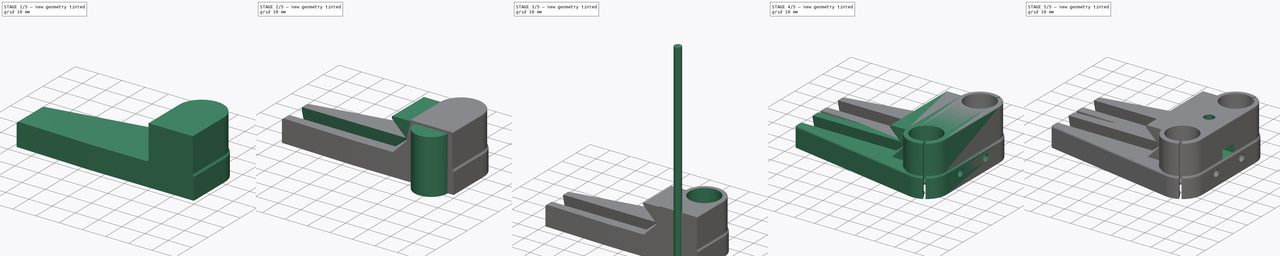
[diagram: build sequence overview — one tinted view per stage of 5, left to right]
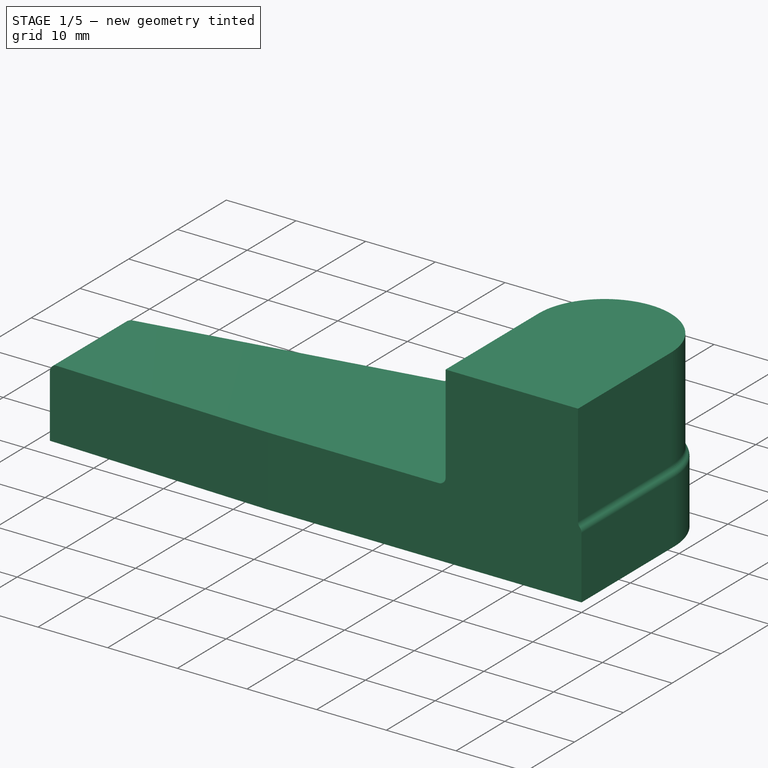
[diagram: stage 1 of 5 — iso view after this stage's code; geometry added in this stage tinted green]
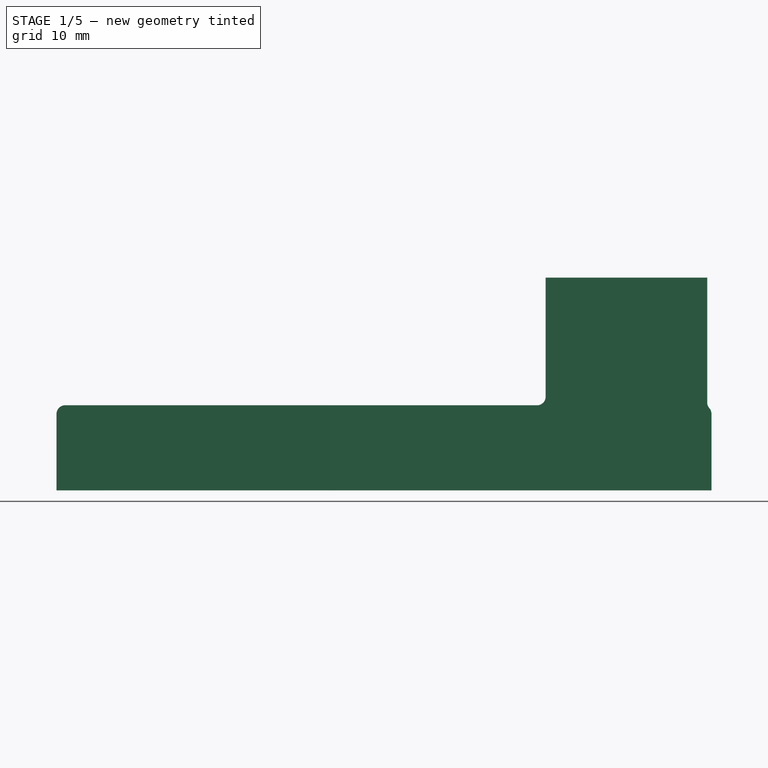
[diagram: stage 1 of 5 — front view after this stage's code; geometry added in this stage tinted green]
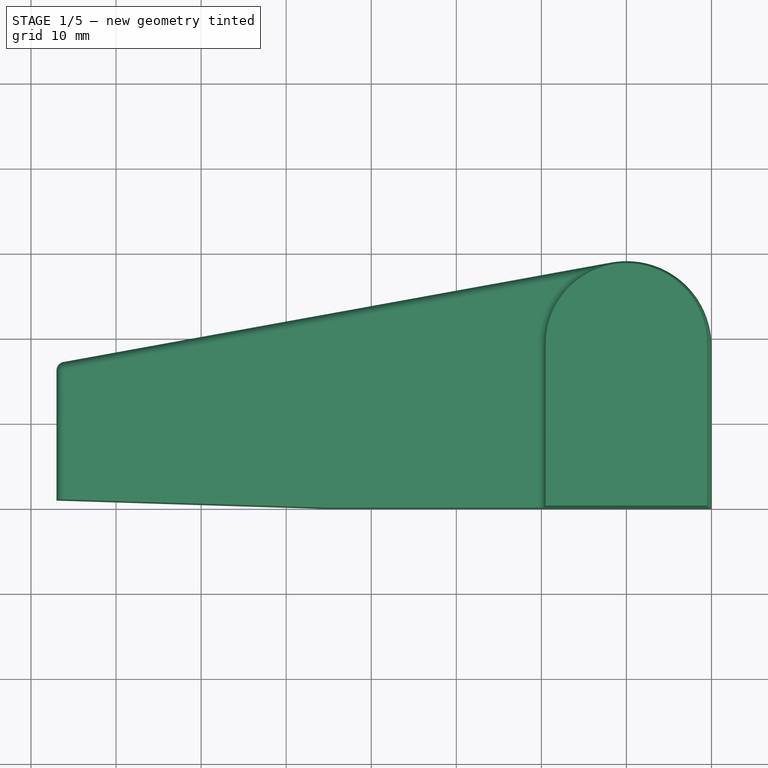
[diagram: stage 1 of 5 — top view after this stage's code; geometry added in this stage tinted green]
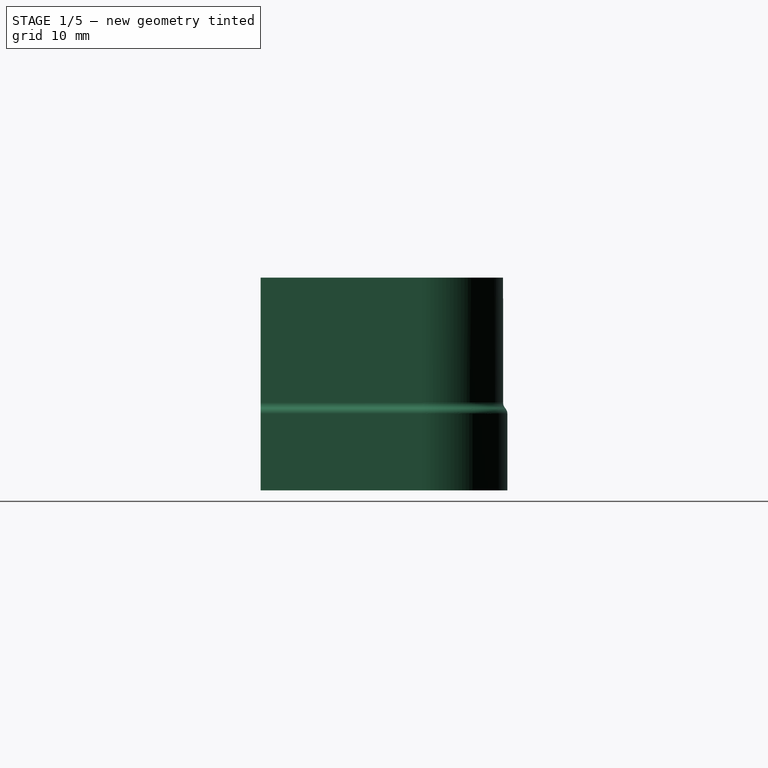
[diagram: stage 1 of 5 — right view after this stage's code; geometry added in this stage tinted green]
FCSTD DOCUMENT  (FreeCAD 0.16RUnknown)
Label: PhoneCarriage
License: All rights reserved
LicenseURL: http://en.wikipedia.org/wiki/All_rights_reserved
objects: Part::Fillet×7, Part::Feature×6, Sketcher::SketchObject×6, Part::FeaturePython×5, Part::Cut×5, Part::Cylinder×4, PartDesign::Pad×3, App::DocumentObjectGroup×3, Part::MultiFuse×2, PartDesign::Pocket×2, Spreadsheet::Sheet×1, Part::Extrusion×1, Part::Mirroring×1
note: 47 computed .brp shape members not serialized (recipe doc carries the construction recipe); baked Part::Feature solids carry a one-line shape summary decoded from their .brp

FEATURE [Sketcher::SketchObject] Sketch004  label="BearingHolder"
  sketch-geometry (4):
    g0: ArcOfCircle CenterX=0 CenterY=19 CenterZ=0 NormalX=0 NormalY=0 NormalZ=1 Radius=9.5 StartAngle=4.98169e-05 EndAngle=3.14159
    g1: LineSegment StartX=-9.5 StartY=19 StartZ=0 EndX=-9.5 EndY=0 EndZ=0
    g2: LineSegment StartX=-9.5 StartY=0 StartZ=0 EndX=9.5 EndY=0 EndZ=0
    g3: LineSegment StartX=9.5 StartY=0 StartZ=0 EndX=9.5 EndY=19.0005 EndZ=0
  constraints (12):
    c: Coincident(g1,g2)
    c: Coincident(g2,g3)
    c: Vertical(g3)
    c: Vertical(g1)
    c: Horizontal(g2)
    c: Coincident(g0,g1)
    c: Coincident(g0,g3)
    c: PointOnObject(g0,g-2)
    c: DistanceY(g0) = 19
    c: PointOnObject(g1,g-1)
    c: Tangent(g0,g1)
    c: Radius(g0) = 9.5
FEATURE [PartDesign::Pad] Pad  label="BearingHolder001"
  Length = 25
  Length2 = 100
  Sketch = -> Sketch004
  Type = 0
FEATURE [Sketcher::SketchObject] Sketch005  label="Base"
  Placement = pos=(0,0,0) rot=(1,0,0;3.14159rad)
  Support = -> Pad [Face5]
  sketch-geometry (7):
    g0: ArcOfCircle CenterX=0 CenterY=-19 CenterZ=0 NormalX=0 NormalY=0 NormalZ=1 Radius=10 StartAngle=4.5328 EndAngle=6.28319
    g1: LineSegment StartX=-1.78629 StartY=-28.8392 StartZ=0 EndX=-67 EndY=-17 EndZ=0
    g2: LineSegment StartX=-67 StartY=-17 StartZ=0 EndX=-67 EndY=-1 EndZ=0
    g3: LineSegment StartX=-35 StartY=0 StartZ=0 EndX=10 EndY=0 EndZ=0
    g4: LineSegment StartX=10 StartY=0 StartZ=0 EndX=10 EndY=-19 EndZ=0
    g5: LineSegment StartX=-35 StartY=0 StartZ=0 EndX=-67 EndY=-1 EndZ=0
    g6: GeomPoint [constr] X=-67 Y=-9 Z=0
  constraints (20):
    c: Coincident(g1,g2)
    c: Coincident(g3,g4)
    c: Coincident(g1,g0)
    c: Coincident(g0,g4)
    c: Tangent(g1,g0)
    c: Tangent(g0,g4)
    c: Vertical(g2)
    c: Vertical(g4)
    c: Horizontal(g3)
    c: PointOnObject(g0,g-2)
    c: Radius(g0) = 10
    c: DistanceY(g0) = -19
    c: DistanceX(g1) = -67
    c: Coincident(g5,g3)
    c: Coincident(g5,g2)
    c: PointOnObject(g3,g-1)
    c: DistanceY(g2,g2) = 16
    c: DistanceX(g3,g3) = 45
    c: Symmetric(g2,g1,g6)
    c: DistanceY(g6) = -9
FEATURE [Part::Extrusion] Extrude  label="Base001"
  Base = -> Sketch005
  Dir = (0,0,10)
  Solid = true
FEATURE [Part::Fillet] Fillet
  Base = -> Extrude
  Edges = 1 edges r=1: [Edge5]
FEATURE [Part::Fillet] Fillet001003  label="NiceFillet"
  Base = -> Fillet
  Edges = 1 edges r=1: [Edge4]
FEATURE [Part::MultiFuse] Fusion
  Shapes = -> [Pad,Fillet001003]
FEATURE [Part::Fillet] Fillet001004  label="NiceFillet001"
  Base = -> Fusion
  Edges = 1 edges r=1: [Edge5]
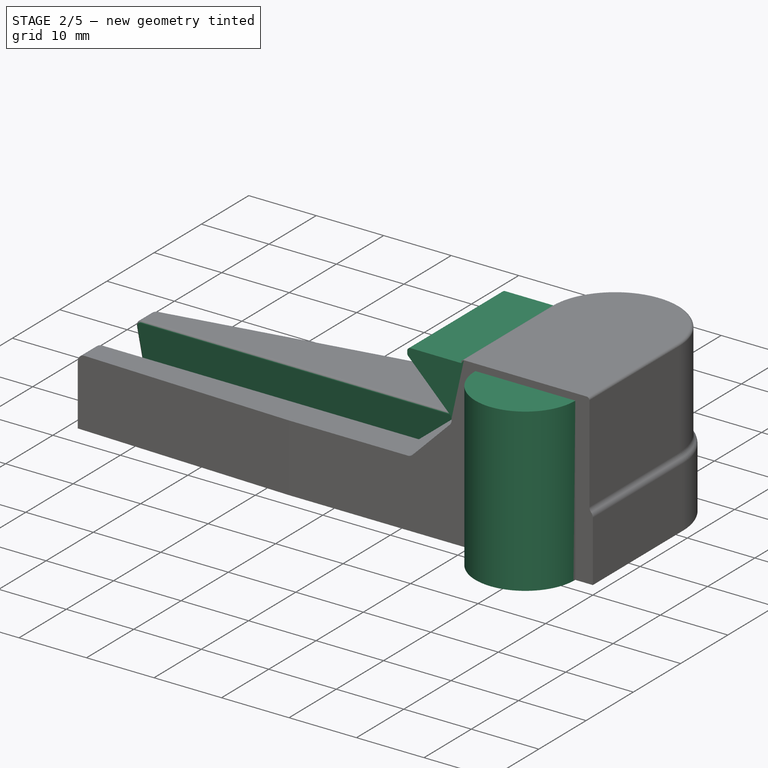
[diagram: stage 2 of 5 — iso view after this stage's code; geometry added in this stage tinted green]
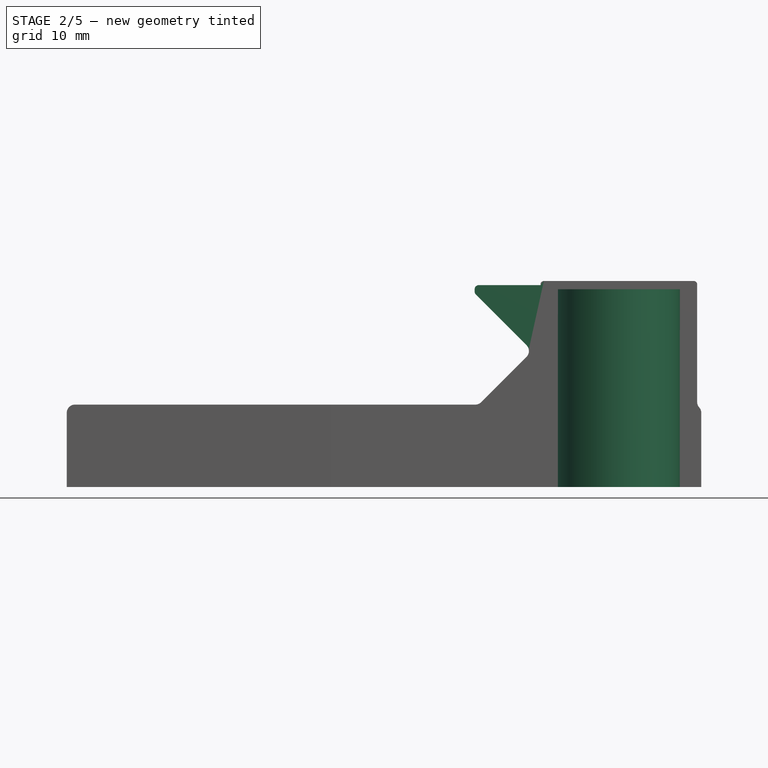
[diagram: stage 2 of 5 — front view after this stage's code; geometry added in this stage tinted green]
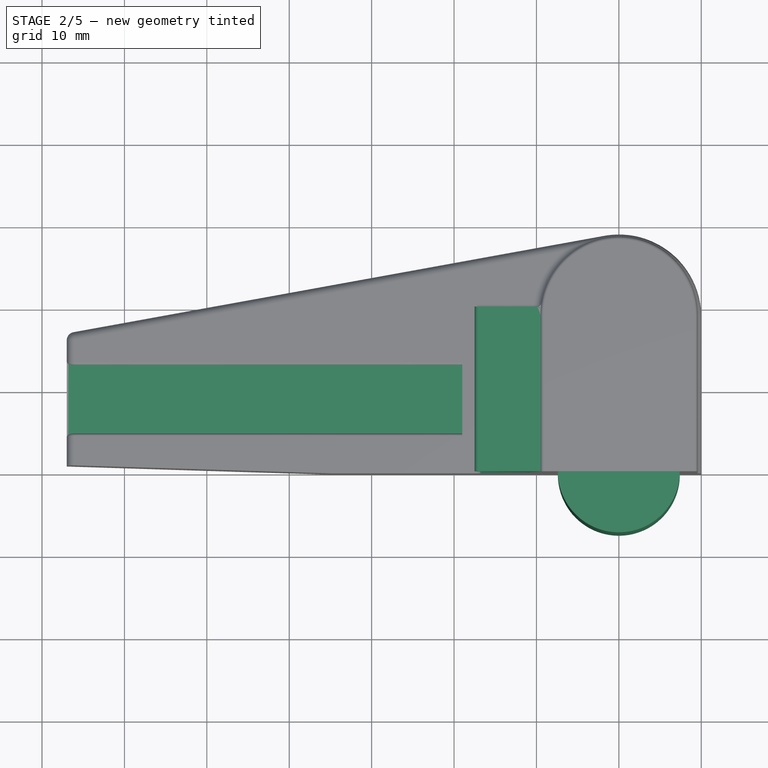
[diagram: stage 2 of 5 — top view after this stage's code; geometry added in this stage tinted green]
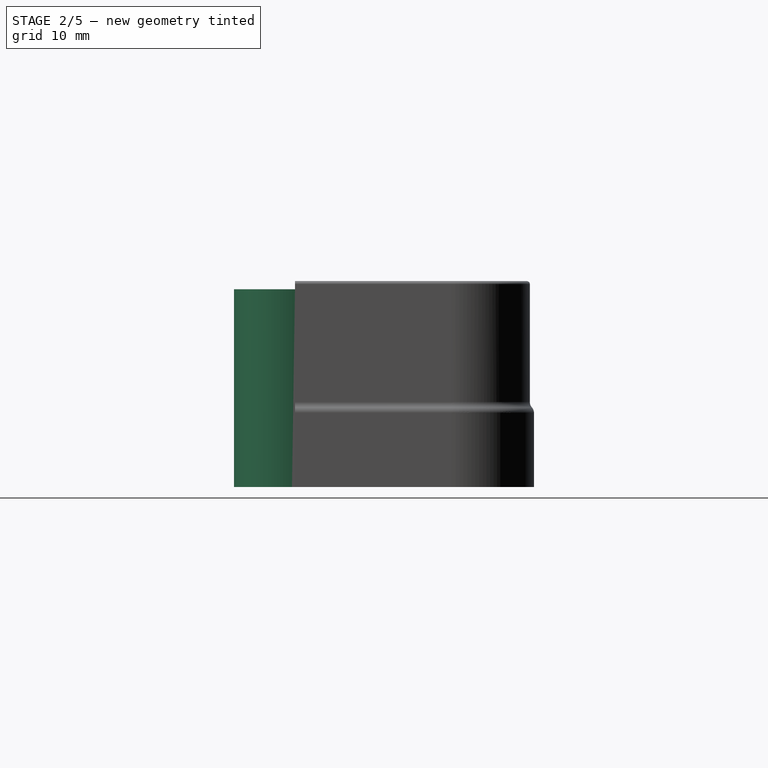
[diagram: stage 2 of 5 — right view after this stage's code; geometry added in this stage tinted green]
FEATURE [Spreadsheet::Sheet] Spreadsheet  label="Params"
  cells = A1=M3 Clearance (Radius); B1=0.25; A2=Smooth Rod Clearance (Radius); B2=0; A3=Bearing Clearance (Radius); B3=-0.1; A4=Threaded Rod Clearance (Radius); B4=0.2; A5=GearsClearance; B5=0; A6=Nut Height Clearance; B6=0.3; A7=Nut Width Clearance; B7=0.15
FEATURE [Part::Cylinder] Cylinder001  label="LM8UU"
  Angle = 360
  Height = 24
  Radius = 7.4
  expr: Radius = 7.5 + Params.B3
FEATURE [Sketcher::SketchObject] Sketch  label="Lane"
  Placement = pos=(-67,0,0) rot=(0.57735,-0.57735,-0.57735;2.0944rad)
  Support = -> Fillet001004 [Face22]
  sketch-geometry (5):
    g0: LineSegment StartX=-13.0794 StartY=10 StartZ=0 EndX=-15 EndY=2 EndZ=0
    g1: LineSegment StartX=-15 StartY=2 StartZ=0 EndX=-3 EndY=2 EndZ=0
    g2: LineSegment StartX=-3 StartY=2 StartZ=0 EndX=-4.92063 EndY=10 EndZ=0
    g3: LineSegment StartX=-13.0794 StartY=10 StartZ=0 EndX=-4.92063 EndY=10 EndZ=0
    g4: LineSegment [constr] StartX=-9 StartY=10 StartZ=0 EndX=-9 EndY=2 EndZ=0
  constraints (15):
    c: Coincident(g0,g1)
    c: Coincident(g1,g2)
    c: Coincident(g0,g3)
    c: Coincident(g2,g3)
    c: PointOnObject(g4,g1)
    c: PointOnObject(g4,g3)
    c: Horizontal(g3)
    c: Horizontal(g1)
    c: DistanceX(g4) = -9
    c: Symmetric(g0,g2,g4)
    c: Symmetric(g1,g0,g4)
    c: DistanceY(g1) = 2
    c: DistanceY(g2) = 10
    c: DistanceX(g1,g1) = 12
    c: Angle(g0,g2) = 0.471239
FEATURE [PartDesign::Pocket] Pocket  label="Lane001"
  Length = 48
  Sketch = -> Sketch
  Type = 0
FEATURE [Part::Fillet] Fillet001005  label="AntiCreaseFillet"
  Base = -> Pocket
  Edges = 2 edges r=0.3: [Edge31,Edge33]
FEATURE [Sketcher::SketchObject] Sketch006  label="PhoneHold"
  Placement = pos=(0,0,0) rot=(1,0,0;1.5708rad)
  Support = -> Fillet001005 [Face8]
  sketch-geometry (7):
    g0: LineSegment StartX=-17.5 StartY=8.5 StartZ=0 EndX=-17.5 EndY=9.5 EndZ=0
    g1: LineSegment StartX=-17.5 StartY=9.5 StartZ=0 EndX=-10.5 EndY=16.5 EndZ=0
    g2: LineSegment StartX=-10.5 StartY=16.5 StartZ=0 EndX=-17.5 EndY=23.5 EndZ=0
    g3: LineSegment StartX=-17.5 StartY=23.5 StartZ=0 EndX=-17.5 EndY=24.5 EndZ=0
    g4: LineSegment StartX=-17.5 StartY=24.5 StartZ=0 EndX=-7.5 EndY=24.5 EndZ=0
    g5: LineSegment StartX=-7.5 StartY=24.5 StartZ=0 EndX=-7.5 EndY=8.5 EndZ=0
    g6: LineSegment StartX=-7.5 StartY=8.5 StartZ=0 EndX=-17.5 EndY=8.5 EndZ=0
  constraints (21):
    c: Coincident(g0,g1)
    c: Coincident(g1,g2)
    c: Coincident(g2,g3)
    c: Coincident(g3,g4)
    c: Coincident(g4,g5)
    c: Coincident(g5,g6)
    c: Coincident(g6,g0)
    c: Horizontal(g6)
    c: Horizontal(g4)
    c: Vertical(g5)
    c: Vertical(g3)
    c: Vertical(g0)
    c: Perpendicular(g1,g2)
    c: Angle(g2) = 2.35619
    c: PointOnObject(g2,g0)
    c: DistanceX(g5) = -7.5
    c: DistanceY(g5) = 8.5
    c: DistanceY(g1) = 16.5
    c: DistanceX(g1) = -10.5
    c: DistanceY(g5,g5) = 16
    c: DistanceX(g3) = -17.5
FEATURE [PartDesign::Pad] Pad003  label="PhoneHold001"
  Length = 20
  Length2 = 100
  Reversed = true
  Sketch = -> Sketch006
  Type = 0
FEATURE [Part::Fillet] Fillet001006  label="NiceFillet004"
  Base = -> Pad003
  Edges = 5 edges: [Edge1 r=0.5,Edge2 r=0.5,Edge5 r=1,Edge12 r=0.5,Edge17 r=1]
FEATURE [Part::Fillet] Fillet001007  label="NiceFillet006"
  Base = -> Fillet001006
  Edges = 1 edges r=0.4: [Edge38]
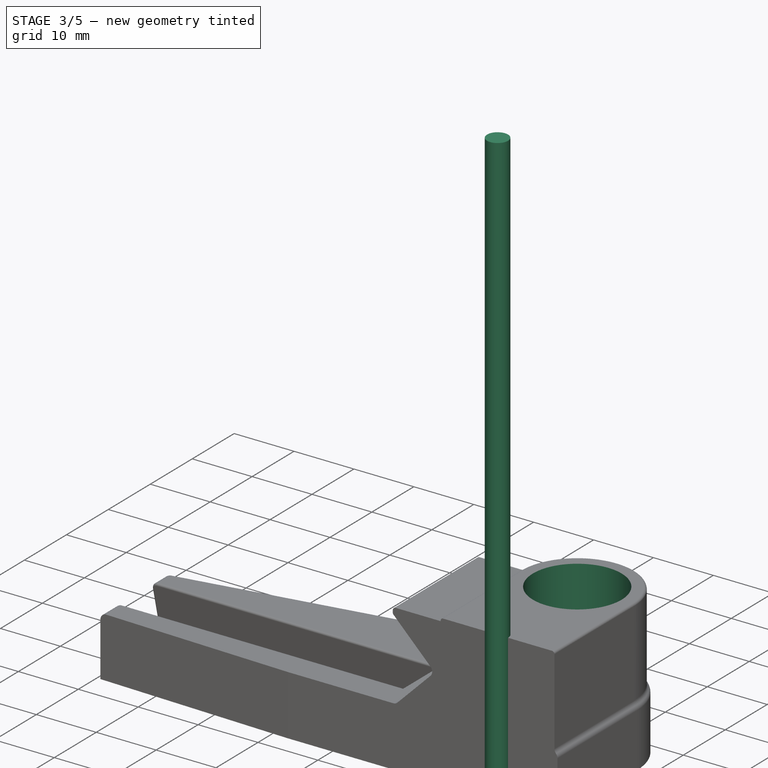
[diagram: stage 3 of 5 — iso view after this stage's code; geometry added in this stage tinted green]
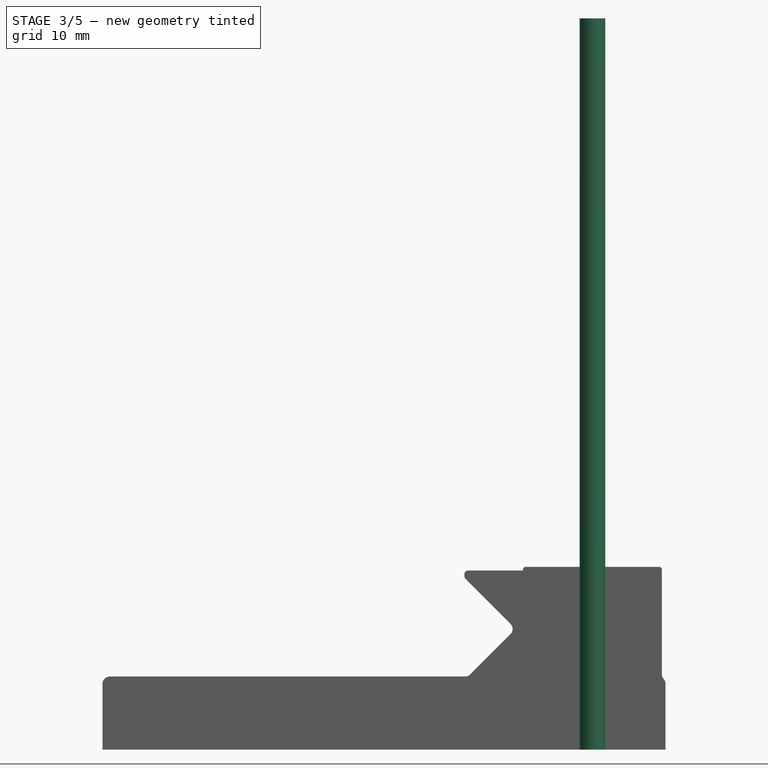
[diagram: stage 3 of 5 — front view after this stage's code; geometry added in this stage tinted green]
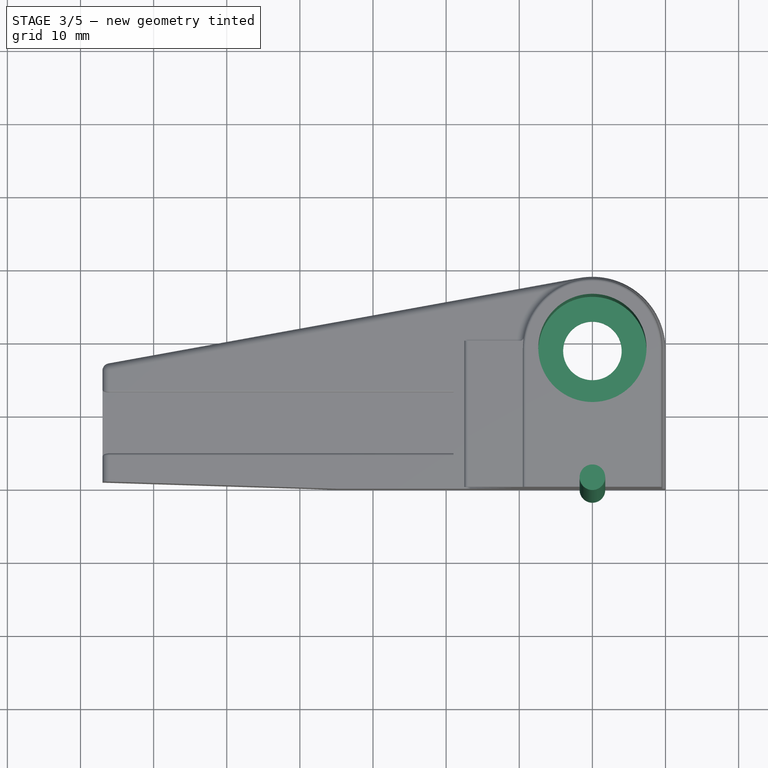
[diagram: stage 3 of 5 — top view after this stage's code; geometry added in this stage tinted green]
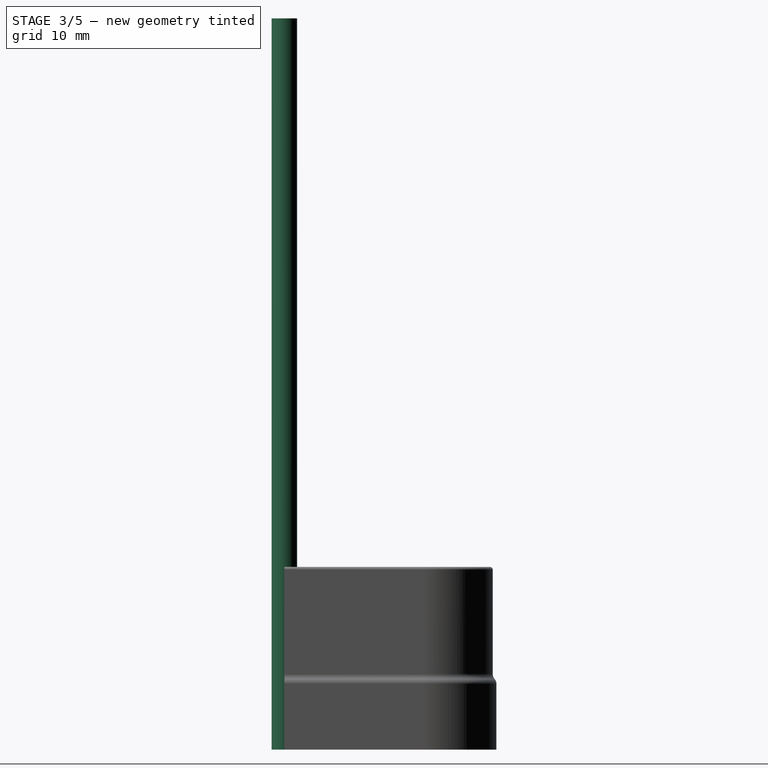
[diagram: stage 3 of 5 — right view after this stage's code; geometry added in this stage tinted green]
FEATURE [Part::Feature] Fillet001002  label="MainStructure"
  Placement = pos=(10,42,-15) rot=(0,0,1;0rad)
  shape: bbox 54.42 x 89 x 96 mm, 138 faces (baked)
FEATURE [Part::Feature] Common002002002  label="UpperLid"
  Placement = pos=(10,42,-15) rot=(0,0,1;0rad)
  shape: bbox 20 x 60 x 5 mm, 23 faces (baked)
FEATURE [Part::Feature] Common002002003  label="LowerLid"
  Placement = pos=(10,42,-15) rot=(0,0,1;0rad)
  shape: bbox 14.89 x 50 x 5 mm, 12 faces (baked)
FEATURE [Part::Feature] Clone089001  label="OldBodyAdjust"
  Placement = pos=(-60,-30,0) rot=(0,0,1;0rad)
  shape: bbox 69 x 82 x 25 mm, 43 faces (baked)
FEATURE [Part::Cylinder] Cylinder  label="SmRod"
  Angle = 360
  Height = 70
  Radius = 4
FEATURE [Part::FeaturePython] Clone  label="Clone of SmRod"  # Draft clone (typed FeaturePython)
  Objects = -> [Cylinder]
  Placement = pos=(0,19,-20) rot=(0,0,1;0rad)
  Scale = (1,1,1)
FEATURE [Part::FeaturePython] Clone089002  label="Clone of LM8UU"  # Draft clone (typed FeaturePython)
  Objects = -> [Cylinder001]
  Placement = pos=(0,19,1) rot=(0,0,1;0rad)
  Scale = (1,1,1)
FEATURE [Part::Cylinder] Cylinder003  label="M3ThrRod"
  Angle = 360
  Height = 100
  Radius = 1.75
  expr: Radius = 1.5 + Params.B1
FEATURE [Part::Cut] Cut
  Base = -> Fillet001007
  Tool = -> Clone089002
FEATURE [Part::Cut] Cut001
  Base = -> Cut
  Tool = -> Clone
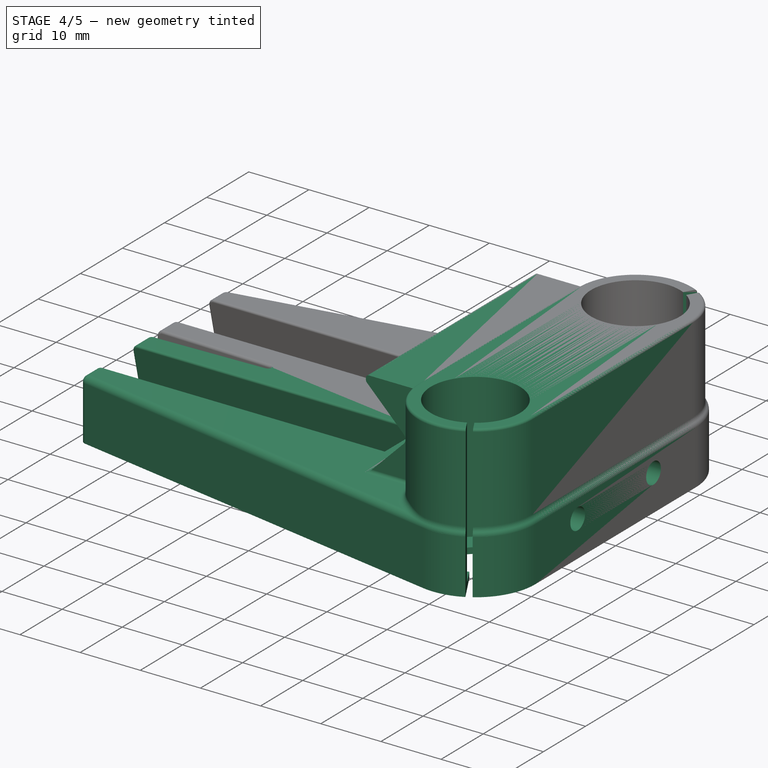
[diagram: stage 4 of 5 — iso view after this stage's code; geometry added in this stage tinted green]
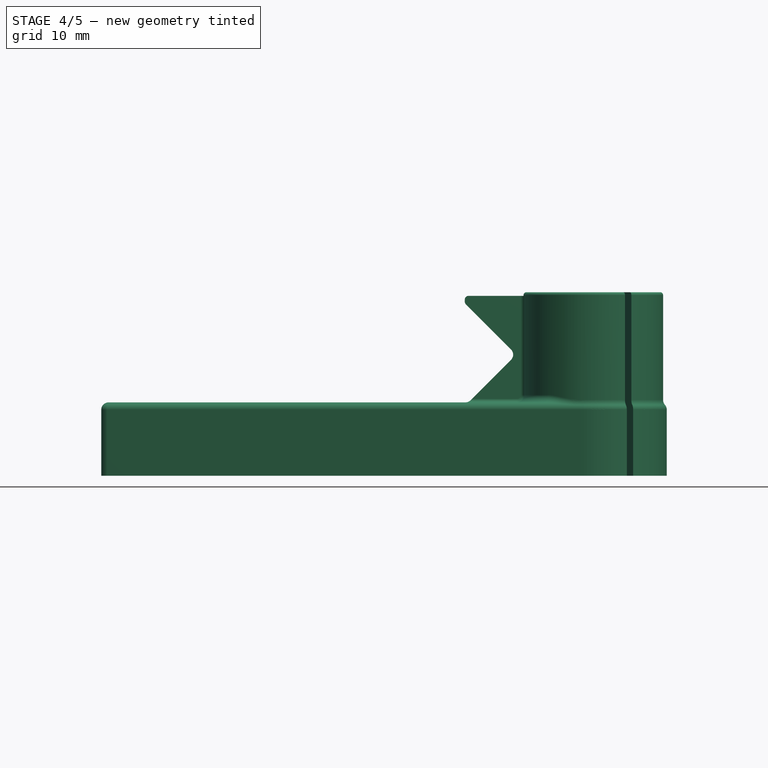
[diagram: stage 4 of 5 — front view after this stage's code; geometry added in this stage tinted green]
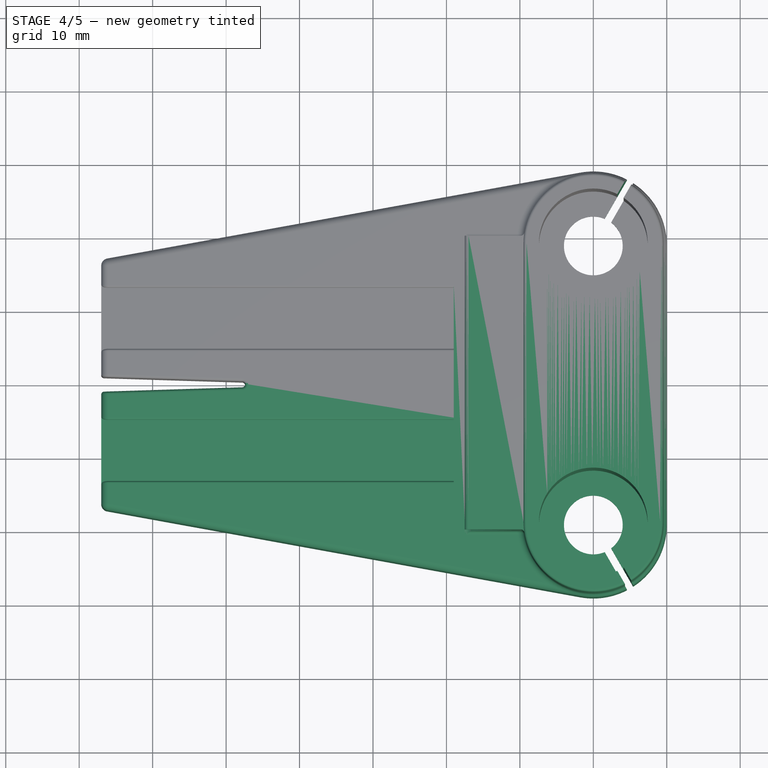
[diagram: stage 4 of 5 — top view after this stage's code; geometry added in this stage tinted green]
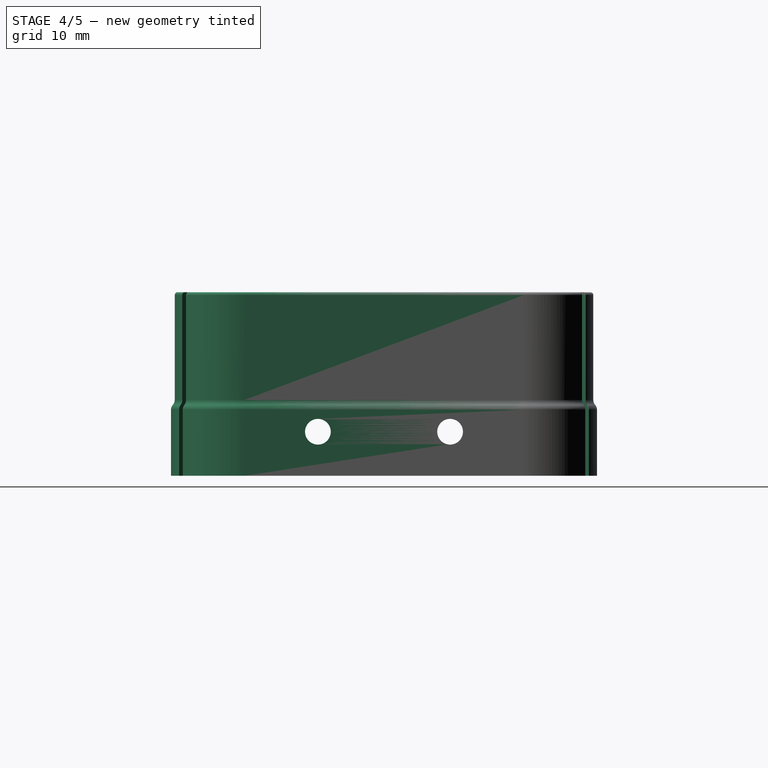
[diagram: stage 4 of 5 — right view after this stage's code; geometry added in this stage tinted green]
FEATURE [App::DocumentObjectGroup] Group001  label="Component_src"
  Group = -> [Cylinder001,Cylinder,Pad002,Cylinder002,Cylinder003]
FEATURE [Part::FeaturePython] Clone089005  label="Clone of M3ThrRod"  # Draft clone (typed FeaturePython)
  Objects = -> [Cylinder003]
  Placement = pos=(15,9,6) rot=(0,-1,0;1.5708rad)
  Scale = (1,1,1)
FEATURE [Part::Cut] Cut002
  Base = -> Cut001
  Tool = -> Clone089005
FEATURE [Part::Feature] Pocket001  label="Phone"
  Placement = pos=(-14,100,12) rot=(0,0,1;0rad)
  shape: bbox 70 x 145 x 9 mm, 33 faces (baked)
FEATURE [App::DocumentObjectGroup] Group  label="Reference"
  Group = -> [Common002002003,Fillet001002,Common002002002,Clone089001,Pocket001]
FEATURE [Sketcher::SketchObject] Sketch007  label="BearingSlit"
  Placement = pos=(0,0,25) rot=(0,0,1;0rad)
  Support = -> Cut002 [Face5]
  sketch-geometry (5):
    g0: LineSegment StartX=-0.433013 StartY=19.25 StartZ=0 EndX=8.51764 EndY=34.753 EndZ=0
    g1: LineSegment StartX=8.51764 StartY=34.753 StartZ=0 EndX=9.38366 EndY=34.253 EndZ=0
    g2: LineSegment StartX=9.38366 StartY=34.253 StartZ=0 EndX=0.433013 EndY=18.75 EndZ=0
    g3: LineSegment StartX=0.433013 StartY=18.75 StartZ=0 EndX=-0.433013 EndY=19.25 EndZ=0
    g4: LineSegment [constr] StartX=8.95065 StartY=34.503 StartZ=0 EndX=0 EndY=19 EndZ=0
  constraints (13):
    c: Coincident(g0,g1)
    c: Coincident(g1,g2)
    c: Coincident(g2,g3)
    c: Coincident(g3,g0)
    c: Symmetric(g0,g2,g4)
    c: Perpendicular(g0,g3)
    c: Perpendicular(g2,g3)
    c: Perpendicular(g0,g1)
    c: Symmetric(g0,g1,g4)
    c: PointOnObject(g4,g-2)
    c: DistanceY(g4) = 19
    c: Distance(g3) = 1
    c: Angle(g-2,g4) = 2.61799
FEATURE [PartDesign::Pocket] Pocket002  label="BearingSlit001"
  Length = 5
  Sketch = -> Sketch007
  Type = 1
FEATURE [Part::Mirroring] Part__Mirroring  label="BearingSlit001 (Mirror #1)"
  Base = (0,0,0)
  Normal = (0,1,0)
  Source = -> Pocket002
FEATURE [Part::MultiFuse] Fusion001  label="Mirroring"
  Shapes = -> [Pocket002,Part__Mirroring]
FEATURE [Part::Fillet] Fillet001008  label="AntiCreaseFillet001"
  Base = -> Fusion001
  Edges = 3 edges r=0.4: [Edge41,Edge45,Edge140]
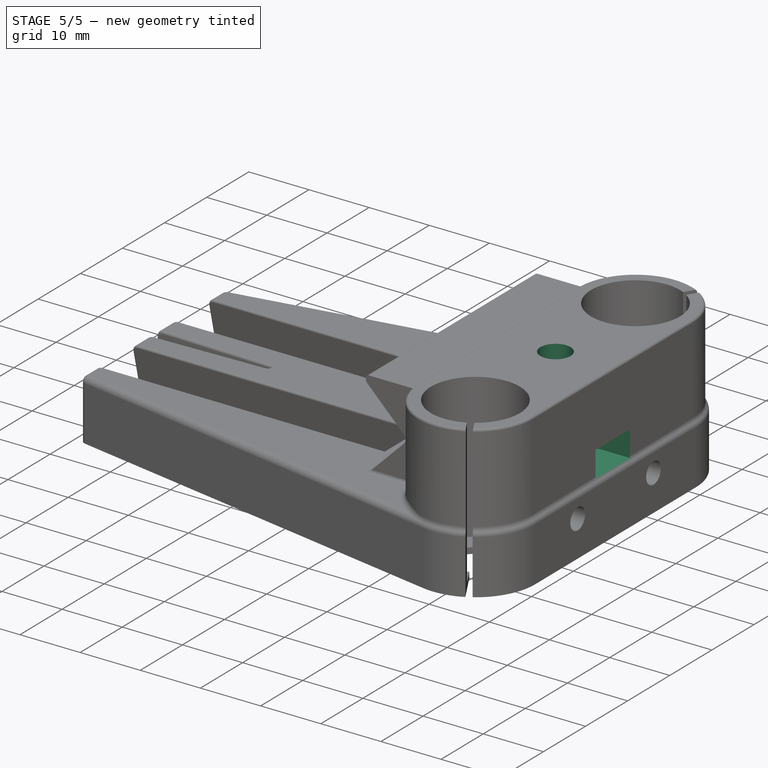
[diagram: stage 5 of 5 — iso view after this stage's code; geometry added in this stage tinted green]
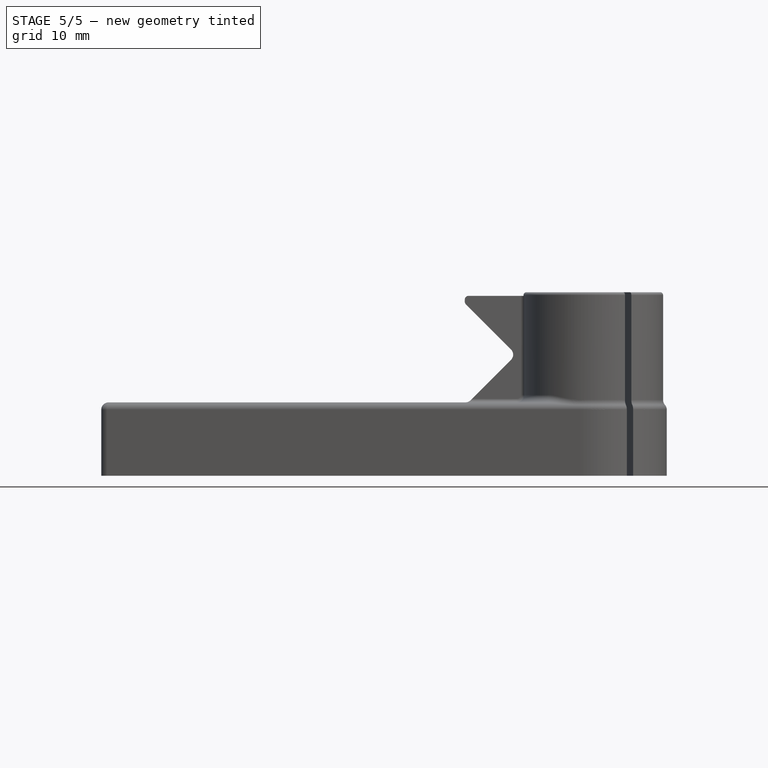
[diagram: stage 5 of 5 — front view after this stage's code; geometry added in this stage tinted green]
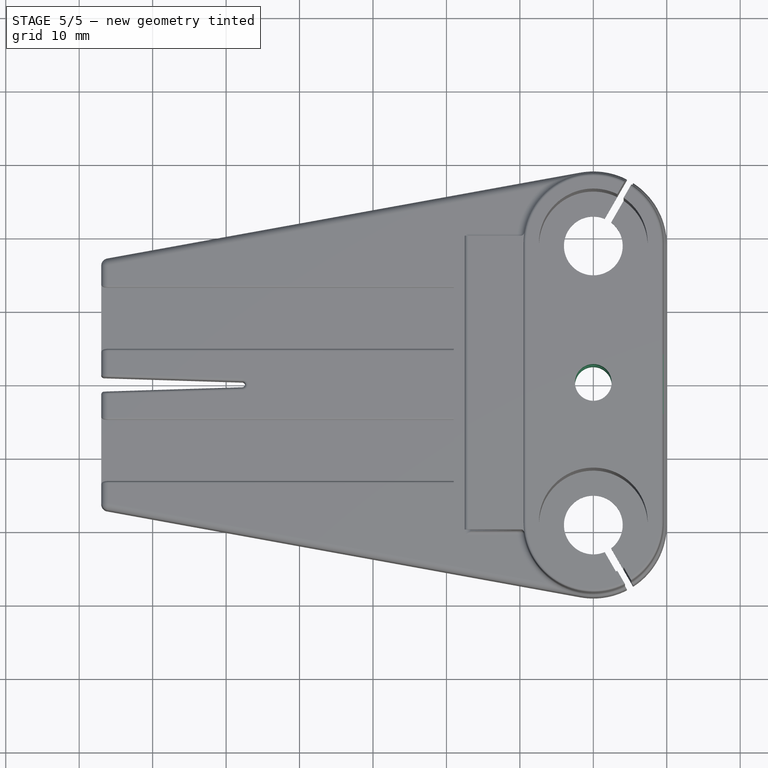
[diagram: stage 5 of 5 — top view after this stage's code; geometry added in this stage tinted green]
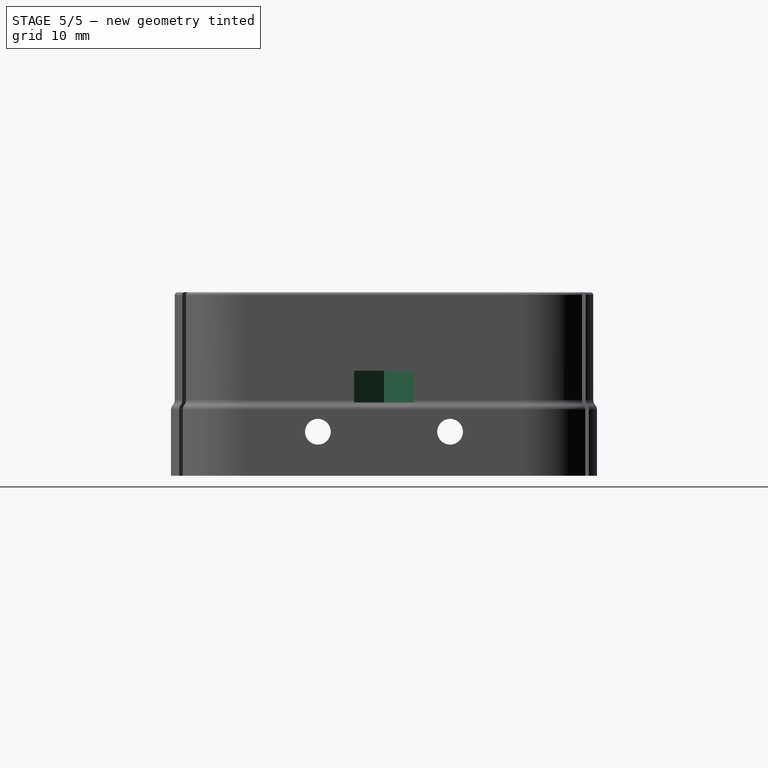
[diagram: stage 5 of 5 — right view after this stage's code; geometry added in this stage tinted green]
FEATURE [Part::Cylinder] Cylinder002  label="M5ThrRod"
  Angle = 360
  Height = 50
  Radius = 2.5
FEATURE [Sketcher::SketchObject] Sketch003  label="M5NutHousingSketch"
  expr: Constraints[13] = 8 + Params.B7
  sketch-geometry (5):
    g0: LineSegment StartX=0 StartY=0 StartZ=0 EndX=2.3527 EndY=4.075 EndZ=0
    g1: LineSegment StartX=2.3527 StartY=4.075 StartZ=0 EndX=22.3527 EndY=4.075 EndZ=0
    g2: LineSegment StartX=22.3527 StartY=4.075 StartZ=0 EndX=22.3527 EndY=-4.075 EndZ=0
    g3: LineSegment StartX=22.3527 StartY=-4.075 StartZ=0 EndX=2.3527 EndY=-4.075 EndZ=0
    g4: LineSegment StartX=2.3527 StartY=-4.075 StartZ=0 EndX=0 EndY=0 EndZ=0
  constraints (14):
    c: Coincident(g-1,g0)
    c: Coincident(g0,g1)
    c: Horizontal(g1)
    c: Coincident(g1,g2)
    c: Vertical(g2)
    c: Coincident(g2,g3)
    c: Horizontal(g3)
    c: Coincident(g3,g4)
    c: Coincident(g4,g0)
    c: Equal(g3,g1)
    c: Angle(g-1,g0) = 1.0472
    c: DistanceX(g3) = -20
    c: Symmetric(g0,g3,g-1)
    c: DistanceY(g2,g2) = 8.15
FEATURE [PartDesign::Pad] Pad002  label="M5NutHousingMaster"
  Length = 4.3
  Length2 = 100
  Sketch = -> Sketch003
  Type = 0
  expr: Length = 4 + Params.B6
FEATURE [Part::FeaturePython] Clone089003  label="Clone of M5ThrRod"  # Draft clone (typed FeaturePython)
  Objects = -> [Cylinder002]
  Scale = (1,1,1)
FEATURE [Part::FeaturePython] Clone089004  label="Clone of M5NutHousingMaster"  # Draft clone (typed FeaturePython)
  Objects = -> [Pad002]
  Placement = pos=(-5,0,10) rot=(0,0,1;0rad)
  Scale = (1,1,1)
FEATURE [Part::Cut] Cut003
  Base = -> Fillet001008
  Tool = -> Clone089004
FEATURE [Part::Cut] Cut004  label="LeadscrewCut"
  Base = -> Cut003
  Tool = -> Clone089003
FEATURE [App::DocumentObjectGroup] Group002  label="src"
  Group = -> [Fillet001004,Fillet001005,Cut002,Cut004]
FEATURE [Part::Feature] Cut004002  label="PhoneCarriage"
  shape: bbox 77.83 x 59.65 x 25 mm, 114 faces (baked)
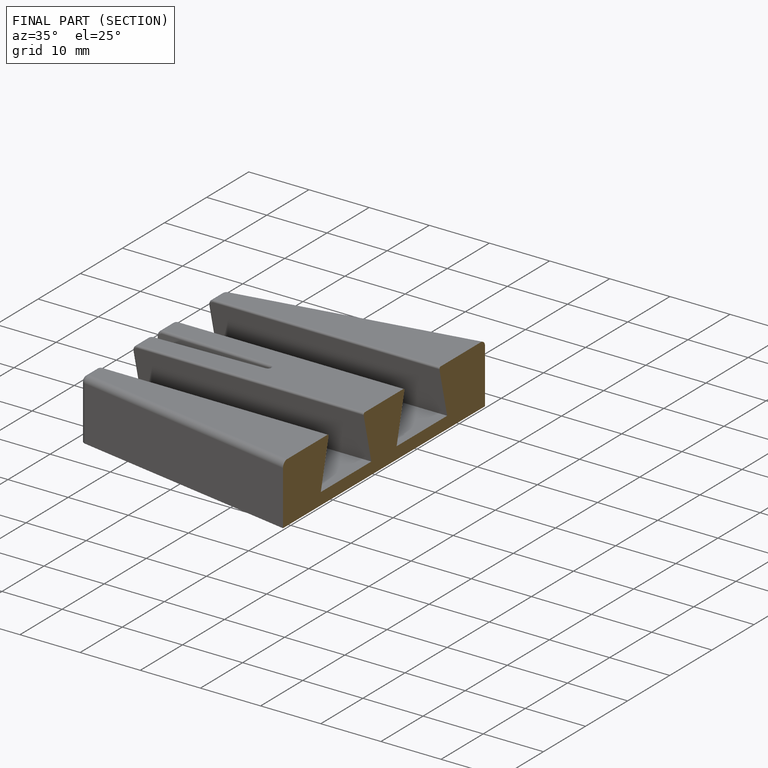
[diagram: finished part — half-section view (interior)]
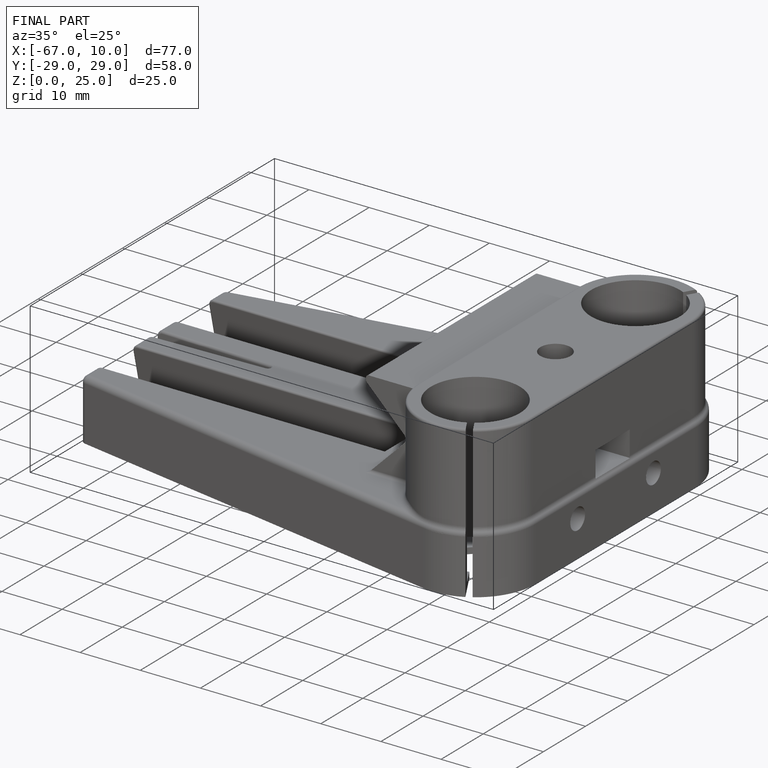
[diagram: finished part — iso view with bounding-box wireframe]
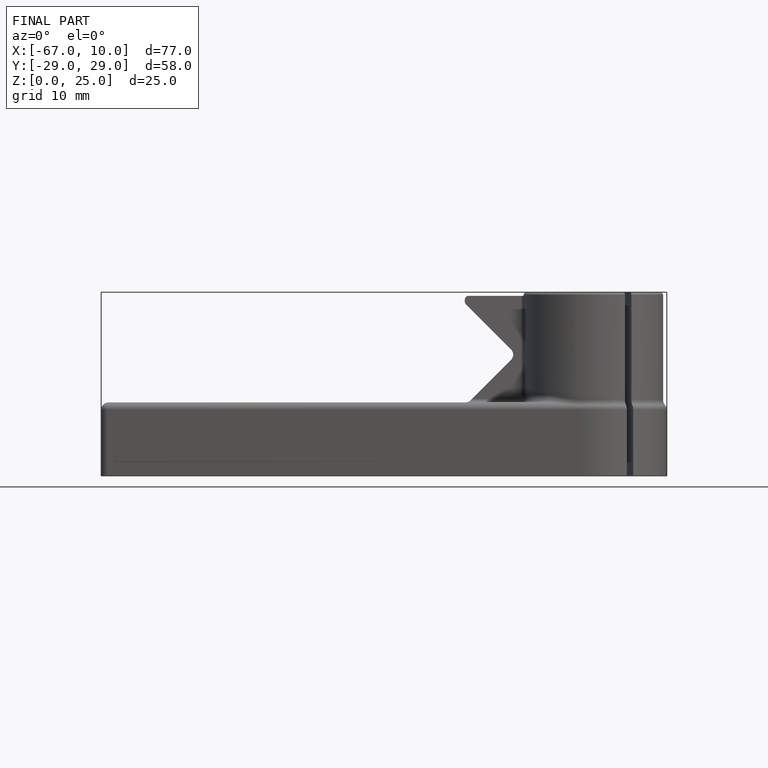
[diagram: finished part — front view with bounding-box wireframe]
